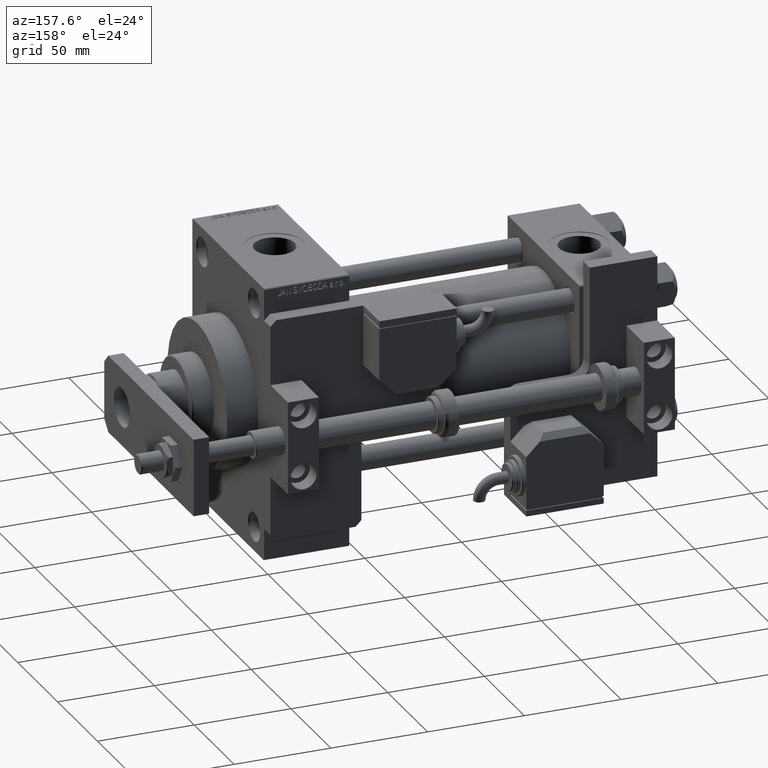
[diagram: clean part render]
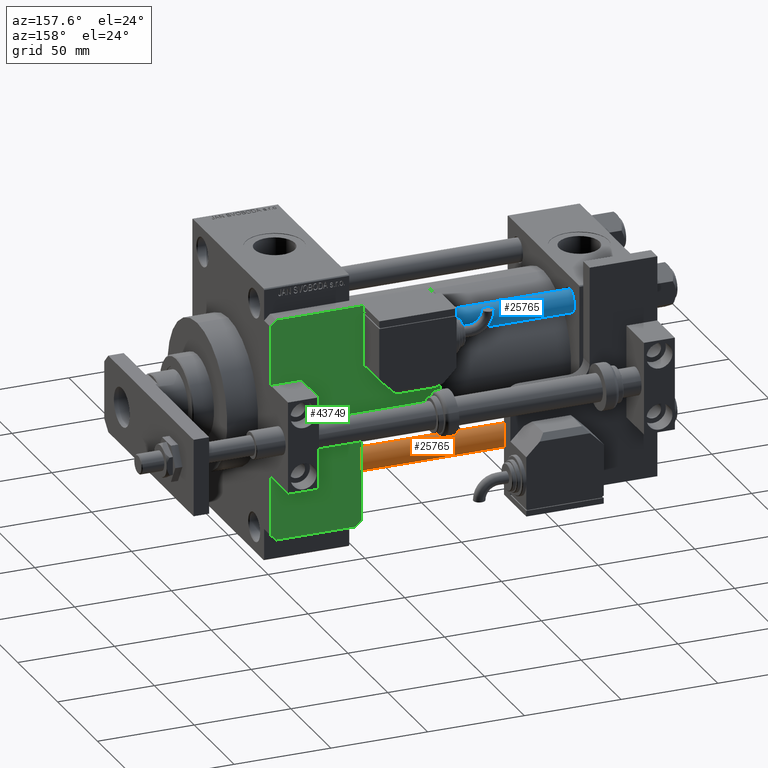
[diagram: same view with three faces highlighted in distinct colors, each labeled with its STEP entity id]
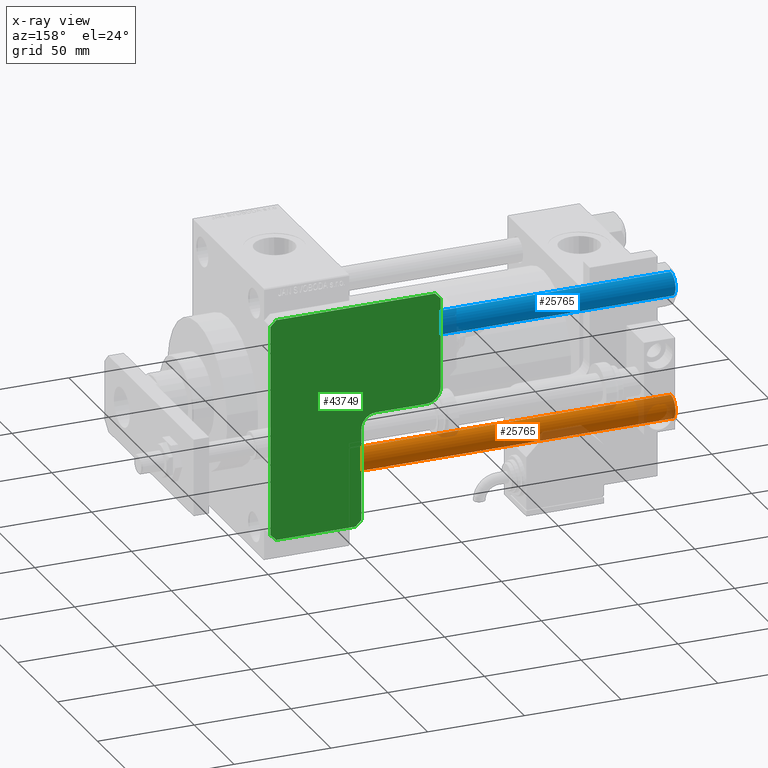
[diagram: x-ray of the same camera — body ghosted, the three highlighted faces saturated]
A machine part, auxiliary view with three faces highlighted in distinct colors.
The next image is the same camera in x-ray (body ghosted, the three faces saturated) — at least one of them is partly hidden behind the body in this view.
Their STEP definitions:

[orange] entity #25765 — the highlighted cylindrical surface (edge-blend (fillet) strip) has radius 6 mm, axis along (-1, -0, 0).
#5994 = DIRECTION ( 'NONE',  ( 1.000000000000000000, 0.000000000000000000, 0.000000000000000000 ) ) ;
#6643 = CARTESIAN_POINT ( 'NONE',  ( -6.000000000000000888, 0.000000000000000000, 184.5000000000000000 ) ) ;
#8200 = CARTESIAN_POINT ( 'NONE',  ( -6.000000000000000888, 0.000000000000000000, 0.5000000000000281997 ) ) ;
#8844 = LINE ( 'NONE', #43305, #46909 ) ;
#10154 = DIRECTION ( 'NONE',  ( -1.000000000000000000, 0.000000000000000000, 0.000000000000000000 ) ) ;
#12277 = DIRECTION ( 'NONE',  ( -0.000000000000000000, -0.000000000000000000, -1.000000000000000000 ) ) ;
#12534 = EDGE_CURVE ( 'NONE', #27091, #54232, #36532, .T. ) ;
#13381 = LINE ( 'NONE', #16438, #30929 ) ;
#13831 = VERTEX_POINT ( 'NONE', #36216 ) ;
#16438 = CARTESIAN_POINT ( 'NONE',  ( -6.000000000000000888, 0.000000000000000000, 185.0000000000000000 ) ) ;
#17402 = DIRECTION ( 'NONE',  ( 0.000000000000000000, 0.000000000000000000, -1.000000000000000000 ) ) ;
#17684 = CARTESIAN_POINT ( 'NONE',  ( 0.000000000000000000, 0.000000000000000000, 184.5000000000000000 ) ) ;
#19396 = DIRECTION ( 'NONE',  ( 1.000000000000000000, 0.000000000000000000, 0.000000000000000000 ) ) ;
#23462 = ORIENTED_EDGE ( 'NONE', *, *, #29775, .T. ) ;
#24550 = CIRCLE ( 'NONE', #44874, 6.000000000000000888 ) ;
#25765 = ADVANCED_FACE ( 'NONE', ( #31270 ), #39623, .T. ) ;
#26147 = VERTEX_POINT ( 'NONE', #6643 ) ;
#26313 = AXIS2_PLACEMENT_3D ( 'NONE', #34888, #52409, #10154 ) ;
#27091 = VERTEX_POINT ( 'NONE', #40920 ) ;
#29171 = ORIENTED_EDGE ( 'NONE', *, *, #12534, .T. ) ;
#29448 = EDGE_CURVE ( 'NONE', #26147, #54232, #13381, .T. ) ;
#29775 = EDGE_CURVE ( 'NONE', #13831, #27091, #8844, .T. ) ;
#30929 = VECTOR ( 'NONE', #12277, 1000.000000000000000 ) ;
#31270 = FACE_OUTER_BOUND ( 'NONE', #43347, .T. ) ;
#32446 = DIRECTION ( 'NONE',  ( -0.000000000000000000, -0.000000000000000000, 1.000000000000000000 ) ) ;
#34888 = CARTESIAN_POINT ( 'NONE',  ( 0.000000000000000000, 0.000000000000000000, 185.0000000000000000 ) ) ;
#36216 = CARTESIAN_POINT ( 'NONE',  ( 6.000000000000000888, 7.347880794884120722E-16, 184.5000000000000000 ) ) ;
#36532 = CIRCLE ( 'NONE', #43645, 6.000000000000000888 ) ;
#39623 = CYLINDRICAL_SURFACE ( 'NONE', #26313, 6.000000000000000888 ) ;
#40910 = EDGE_CURVE ( 'NONE', #26147, #13831, #24550, .T. ) ;
#40920 = CARTESIAN_POINT ( 'NONE',  ( 6.000000000000000888, 7.347880794884120722E-16, 0.5000000000000281997 ) ) ;
#43305 = CARTESIAN_POINT ( 'NONE',  ( 6.000000000000000888, 7.347880794884120722E-16, 185.0000000000000000 ) ) ;
#43347 = EDGE_LOOP ( 'NONE', ( #50275, #23462, #29171, #53729 ) ) ;
#43645 = AXIS2_PLACEMENT_3D ( 'NONE', #49135, #32446, #19396 ) ;
#44874 = AXIS2_PLACEMENT_3D ( 'NONE', #17684, #17402, #5994 ) ;
#46909 = VECTOR ( 'NONE', #47758, 1000.000000000000000 ) ;
#47758 = DIRECTION ( 'NONE',  ( -0.000000000000000000, -0.000000000000000000, -1.000000000000000000 ) ) ;
#49135 = CARTESIAN_POINT ( 'NONE',  ( 0.000000000000000000, 0.000000000000000000, 0.5000000000000281997 ) ) ;
#50275 = ORIENTED_EDGE ( 'NONE', *, *, #40910, .T. ) ;
#52409 = DIRECTION ( 'NONE',  ( -0.000000000000000000, -0.000000000000000000, -1.000000000000000000 ) ) ;
#53729 = ORIENTED_EDGE ( 'NONE', *, *, #29448, .F. ) ;
#54232 = VERTEX_POINT ( 'NONE', #8200 ) ;

[blue] entity #25765 — the highlighted cylindrical surface (edge-blend (fillet) strip) has radius 6 mm, axis along (1, -0, -0).
#5994 = DIRECTION ( 'NONE',  ( 1.000000000000000000, 0.000000000000000000, 0.000000000000000000 ) ) ;
#6643 = CARTESIAN_POINT ( 'NONE',  ( -6.000000000000000888, 0.000000000000000000, 184.5000000000000000 ) ) ;
#8200 = CARTESIAN_POINT ( 'NONE',  ( -6.000000000000000888, 0.000000000000000000, 0.5000000000000281997 ) ) ;
#8844 = LINE ( 'NONE', #43305, #46909 ) ;
#10154 = DIRECTION ( 'NONE',  ( -1.000000000000000000, 0.000000000000000000, 0.000000000000000000 ) ) ;
#12277 = DIRECTION ( 'NONE',  ( -0.000000000000000000, -0.000000000000000000, -1.000000000000000000 ) ) ;
#12534 = EDGE_CURVE ( 'NONE', #27091, #54232, #36532, .T. ) ;
#13381 = LINE ( 'NONE', #16438, #30929 ) ;
#13831 = VERTEX_POINT ( 'NONE', #36216 ) ;
#16438 = CARTESIAN_POINT ( 'NONE',  ( -6.000000000000000888, 0.000000000000000000, 185.0000000000000000 ) ) ;
#17402 = DIRECTION ( 'NONE',  ( 0.000000000000000000, 0.000000000000000000, -1.000000000000000000 ) ) ;
#17684 = CARTESIAN_POINT ( 'NONE',  ( 0.000000000000000000, 0.000000000000000000, 184.5000000000000000 ) ) ;
#19396 = DIRECTION ( 'NONE',  ( 1.000000000000000000, 0.000000000000000000, 0.000000000000000000 ) ) ;
#23462 = ORIENTED_EDGE ( 'NONE', *, *, #29775, .T. ) ;
#24550 = CIRCLE ( 'NONE', #44874, 6.000000000000000888 ) ;
#25765 = ADVANCED_FACE ( 'NONE', ( #31270 ), #39623, .T. ) ;
#26147 = VERTEX_POINT ( 'NONE', #6643 ) ;
#26313 = AXIS2_PLACEMENT_3D ( 'NONE', #34888, #52409, #10154 ) ;
#27091 = VERTEX_POINT ( 'NONE', #40920 ) ;
#29171 = ORIENTED_EDGE ( 'NONE', *, *, #12534, .T. ) ;
#29448 = EDGE_CURVE ( 'NONE', #26147, #54232, #13381, .T. ) ;
#29775 = EDGE_CURVE ( 'NONE', #13831, #27091, #8844, .T. ) ;
#30929 = VECTOR ( 'NONE', #12277, 1000.000000000000000 ) ;
#31270 = FACE_OUTER_BOUND ( 'NONE', #43347, .T. ) ;
#32446 = DIRECTION ( 'NONE',  ( -0.000000000000000000, -0.000000000000000000, 1.000000000000000000 ) ) ;
#34888 = CARTESIAN_POINT ( 'NONE',  ( 0.000000000000000000, 0.000000000000000000, 185.0000000000000000 ) ) ;
#36216 = CARTESIAN_POINT ( 'NONE',  ( 6.000000000000000888, 7.347880794884120722E-16, 184.5000000000000000 ) ) ;
#36532 = CIRCLE ( 'NONE', #43645, 6.000000000000000888 ) ;
#39623 = CYLINDRICAL_SURFACE ( 'NONE', #26313, 6.000000000000000888 ) ;
#40910 = EDGE_CURVE ( 'NONE', #26147, #13831, #24550, .T. ) ;
#40920 = CARTESIAN_POINT ( 'NONE',  ( 6.000000000000000888, 7.347880794884120722E-16, 0.5000000000000281997 ) ) ;
#43305 = CARTESIAN_POINT ( 'NONE',  ( 6.000000000000000888, 7.347880794884120722E-16, 185.0000000000000000 ) ) ;
#43347 = EDGE_LOOP ( 'NONE', ( #50275, #23462, #29171, #53729 ) ) ;
#43645 = AXIS2_PLACEMENT_3D ( 'NONE', #49135, #32446, #19396 ) ;
#44874 = AXIS2_PLACEMENT_3D ( 'NONE', #17684, #17402, #5994 ) ;
#46909 = VECTOR ( 'NONE', #47758, 1000.000000000000000 ) ;
#47758 = DIRECTION ( 'NONE',  ( -0.000000000000000000, -0.000000000000000000, -1.000000000000000000 ) ) ;
#49135 = CARTESIAN_POINT ( 'NONE',  ( 0.000000000000000000, 0.000000000000000000, 0.5000000000000281997 ) ) ;
#50275 = ORIENTED_EDGE ( 'NONE', *, *, #40910, .T. ) ;
#52409 = DIRECTION ( 'NONE',  ( -0.000000000000000000, -0.000000000000000000, -1.000000000000000000 ) ) ;
#53729 = ORIENTED_EDGE ( 'NONE', *, *, #29448, .F. ) ;
#54232 = VERTEX_POINT ( 'NONE', #8200 ) ;

[green] entity #43749 — the highlighted planar face has unit normal (-0, 1, -0).
#118 = CARTESIAN_POINT ( 'NONE',  ( 56.99999999999999289, 54.49999999999998579, 8.000000000000000000 ) ) ;
#1430 = DIRECTION ( 'NONE',  ( -0.7071067811865507924, -0.7071067811865441310, -0.000000000000000000 ) ) ;
#1927 = VERTEX_POINT ( 'NONE', #118 ) ;
#3450 = LINE ( 'NONE', #29568, #30454 ) ;
#3478 = CARTESIAN_POINT ( 'NONE',  ( 64.50000000000000000, 46.99999999999998579, 8.000000000000000000 ) ) ;
#3638 = CARTESIAN_POINT ( 'NONE',  ( 114.9999999999999858, 2.999999999999975131, 8.000000000000000000 ) ) ;
#3822 = CARTESIAN_POINT ( 'NONE',  ( 2.999999999999975131, 0.000000000000000000, 8.000000000000000000 ) ) ;
#4019 = DIRECTION ( 'NONE',  ( 0.000000000000000000, 1.000000000000000000, 0.000000000000000000 ) ) ;
#4492 = DIRECTION ( 'NONE',  ( 0.7071067811865441310, -0.7071067811865507924, -0.000000000000000000 ) ) ;
#4855 = DIRECTION ( 'NONE',  ( 1.000000000000000000, 0.000000000000000000, 0.000000000000000000 ) ) ;
#5248 = VERTEX_POINT ( 'NONE', #3478 ) ;
#5518 = VERTEX_POINT ( 'NONE', #10703 ) ;
#7133 = CARTESIAN_POINT ( 'NONE',  ( 114.9999999999999858, 43.99999999999998579, 8.000000000000000000 ) ) ;
#7410 = LINE ( 'NONE', #41604, #21422 ) ;
#10038 = CIRCLE ( 'NONE', #53521, 7.500000000000007105 ) ;
#10347 = ORIENTED_EDGE ( 'NONE', *, *, #45613, .T. ) ;
#10703 = CARTESIAN_POINT ( 'NONE',  ( 3.000000000000002665, 88.00000000000000000, 8.000000000000000000 ) ) ;
#11173 = CARTESIAN_POINT ( 'NONE',  ( 64.50000000000000000, 54.49999999999998579, 8.000000000000000000 ) ) ;
#11635 = PLANE ( 'NONE',  #15709 ) ;
#11720 = EDGE_CURVE ( 'NONE', #40412, #27782, #7410, .T. ) ;
#13261 = EDGE_LOOP ( 'NONE', ( #17512, #25250, #14770, #10347, #40377, #15318, #40949, #23483, #22779, #29997, #28236, #30927 ) ) ;
#13866 = CARTESIAN_POINT ( 'NONE',  ( 112.0000000000000142, 46.99999999999998579, 8.000000000000000000 ) ) ;
#14083 = VECTOR ( 'NONE', #35783, 1000.000000000000000 ) ;
#14603 = EDGE_CURVE ( 'NONE', #5248, #1927, #10038, .T. ) ;
#14770 = ORIENTED_EDGE ( 'NONE', *, *, #48757, .T. ) ;
#15318 = ORIENTED_EDGE ( 'NONE', *, *, #49835, .T. ) ;
#15622 = EDGE_CURVE ( 'NONE', #28293, #46053, #26832, .T. ) ;
#15709 = AXIS2_PLACEMENT_3D ( 'NONE', #19420, #49157, #36363 ) ;
#17512 = ORIENTED_EDGE ( 'NONE', *, *, #47490, .T. ) ;
#18828 = VERTEX_POINT ( 'NONE', #13866 ) ;
#19420 = CARTESIAN_POINT ( 'NONE',  ( 0.000000000000000000, 0.000000000000000000, 8.000000000000000000 ) ) ;
#20353 = VECTOR ( 'NONE', #50683, 1000.000000000000000 ) ;
#20395 = CARTESIAN_POINT ( 'NONE',  ( 1.500000000000001332, 1.499999999999987566, 8.000000000000000000 ) ) ;
#20946 = CARTESIAN_POINT ( 'NONE',  ( 0.000000000000000000, 88.00000000000000000, 8.000000000000000000 ) ) ;
#21422 = VECTOR ( 'NONE', #4019, 1000.000000000000000 ) ;
#22779 = ORIENTED_EDGE ( 'NONE', *, *, #33300, .T. ) ;
#22810 = DIRECTION ( 'NONE',  ( 0.000000000000000000, 1.000000000000000000, 0.000000000000000000 ) ) ;
#22885 = CARTESIAN_POINT ( 'NONE',  ( 56.99999999999999289, 80.49999999999997158, 8.000000000000000000 ) ) ;
#23483 = ORIENTED_EDGE ( 'NONE', *, *, #37365, .T. ) ;
#23591 = FACE_OUTER_BOUND ( 'NONE', #13261, .T. ) ;
#25148 = DIRECTION ( 'NONE',  ( -0.7071067811865441310, 0.7071067811865507924, -0.000000000000000000 ) ) ;
#25250 = ORIENTED_EDGE ( 'NONE', *, *, #46674, .T. ) ;
#25481 = CARTESIAN_POINT ( 'NONE',  ( 0.000000000000000000, 85.00000000000001421, 8.000000000000000000 ) ) ;
#26553 = CARTESIAN_POINT ( 'NONE',  ( 0.000000000000000000, 0.000000000000000000, 8.000000000000000000 ) ) ;
#26832 = LINE ( 'NONE', #26553, #26926 ) ;
#26926 = VECTOR ( 'NONE', #4855, 1000.000000000000000 ) ;
#27708 = CARTESIAN_POINT ( 'NONE',  ( 56.99999999999999289, 88.00000000000000000, 8.000000000000000000 ) ) ;
#27717 = CARTESIAN_POINT ( 'NONE',  ( 55.99999999999947420, -55.99999999999999289, 8.000000000000000000 ) ) ;
#27782 = VERTEX_POINT ( 'NONE', #7133 ) ;
#27950 = VECTOR ( 'NONE', #25148, 1000.000000000000114 ) ;
#28115 = DIRECTION ( 'NONE',  ( 1.000000000000000000, 0.000000000000000000, 0.000000000000000000 ) ) ;
#28236 = ORIENTED_EDGE ( 'NONE', *, *, #39202, .T. ) ;
#28293 = VERTEX_POINT ( 'NONE', #3822 ) ;
#29568 = CARTESIAN_POINT ( 'NONE',  ( 114.9999999999999858, 46.99999999999998579, 8.000000000000000000 ) ) ;
#29829 = VERTEX_POINT ( 'NONE', #43021 ) ;
#29997 = ORIENTED_EDGE ( 'NONE', *, *, #14603, .T. ) ;
#30454 = VECTOR ( 'NONE', #42099, 1000.000000000000000 ) ;
#30772 = CIRCLE ( 'NONE', #41421, 7.500000000000000000 ) ;
#30927 = ORIENTED_EDGE ( 'NONE', *, *, #43792, .T. ) ;
#33284 = DIRECTION ( 'NONE',  ( 1.000000000000000000, 0.000000000000000000, 0.000000000000000000 ) ) ;
#33300 = EDGE_CURVE ( 'NONE', #18828, #5248, #3450, .T. ) ;
#34091 = DIRECTION ( 'NONE',  ( 0.000000000000000000, -0.000000000000000000, 1.000000000000000000 ) ) ;
#34423 = VECTOR ( 'NONE', #1430, 1000.000000000000114 ) ;
#35027 = LINE ( 'NONE', #35850, #48457 ) ;
#35090 = LINE ( 'NONE', #52054, #34423 ) ;
#35783 = DIRECTION ( 'NONE',  ( -1.000000000000000000, 0.000000000000000000, 0.000000000000000000 ) ) ;
#35850 = CARTESIAN_POINT ( 'NONE',  ( 56.99999999999999289, 46.99999999999998579, 8.000000000000000000 ) ) ;
#36325 = VECTOR ( 'NONE', #52753, 1000.000000000000114 ) ;
#36363 = DIRECTION ( 'NONE',  ( 1.000000000000000000, 0.000000000000000000, -0.000000000000000000 ) ) ;
#37365 = EDGE_CURVE ( 'NONE', #27782, #18828, #42105, .T. ) ;
#39202 = EDGE_CURVE ( 'NONE', #1927, #47716, #35027, .T. ) ;
#39681 = CARTESIAN_POINT ( 'NONE',  ( 111.9999999999999858, 0.000000000000000000, 8.000000000000000000 ) ) ;
#39890 = CARTESIAN_POINT ( 'NONE',  ( 0.000000000000000000, 3.000000000000002665, 8.000000000000000000 ) ) ;
#40241 = LINE ( 'NONE', #27708, #14083 ) ;
#40377 = ORIENTED_EDGE ( 'NONE', *, *, #15622, .T. ) ;
#40412 = VERTEX_POINT ( 'NONE', #3638 ) ;
#40949 = ORIENTED_EDGE ( 'NONE', *, *, #11720, .T. ) ;
#41421 = AXIS2_PLACEMENT_3D ( 'NONE', #46068, #34091, #33284 ) ;
#41513 = LINE ( 'NONE', #20395, #53055 ) ;
#41533 = LINE ( 'NONE', #20946, #20353 ) ;
#41604 = CARTESIAN_POINT ( 'NONE',  ( 114.9999999999999858, 0.000000000000000000, 8.000000000000000000 ) ) ;
#42099 = DIRECTION ( 'NONE',  ( -1.000000000000000000, 0.000000000000000000, 0.000000000000000000 ) ) ;
#42105 = LINE ( 'NONE', #47390, #27950 ) ;
#43021 = CARTESIAN_POINT ( 'NONE',  ( 49.49999999999999289, 88.00000000000000000, 8.000000000000000000 ) ) ;
#43585 = LINE ( 'NONE', #27717, #36325 ) ;
#43749 = ADVANCED_FACE ( 'NONE', ( #23591 ), #11635, .T. ) ;
#43781 = VERTEX_POINT ( 'NONE', #25481 ) ;
#43792 = EDGE_CURVE ( 'NONE', #47716, #29829, #30772, .T. ) ;
#45203 = VERTEX_POINT ( 'NONE', #39890 ) ;
#45613 = EDGE_CURVE ( 'NONE', #45203, #28293, #41513, .T. ) ;
#46053 = VERTEX_POINT ( 'NONE', #39681 ) ;
#46068 = CARTESIAN_POINT ( 'NONE',  ( 49.49999999999999289, 80.49999999999998579, 8.000000000000000000 ) ) ;
#46674 = EDGE_CURVE ( 'NONE', #5518, #43781, #35090, .T. ) ;
#47390 = CARTESIAN_POINT ( 'NONE',  ( 79.50000000000051159, 79.49999999999977263, 8.000000000000000000 ) ) ;
#47490 = EDGE_CURVE ( 'NONE', #29829, #5518, #40241, .T. ) ;
#47716 = VERTEX_POINT ( 'NONE', #22885 ) ;
#48457 = VECTOR ( 'NONE', #22810, 1000.000000000000000 ) ;
#48757 = EDGE_CURVE ( 'NONE', #43781, #45203, #41533, .T. ) ;
#49157 = DIRECTION ( 'NONE',  ( 0.000000000000000000, -0.000000000000000000, 1.000000000000000000 ) ) ;
#49835 = EDGE_CURVE ( 'NONE', #46053, #40412, #43585, .T. ) ;
#50683 = DIRECTION ( 'NONE',  ( 0.000000000000000000, -1.000000000000000000, 0.000000000000000000 ) ) ;
#52054 = CARTESIAN_POINT ( 'NONE',  ( -42.50000000000000711, 42.50000000000040501, 8.000000000000000000 ) ) ;
#52753 = DIRECTION ( 'NONE',  ( 0.7071067811865507924, 0.7071067811865441310, -0.000000000000000000 ) ) ;
#52884 = DIRECTION ( 'NONE',  ( -0.000000000000000000, 0.000000000000000000, -1.000000000000000000 ) ) ;
#53055 = VECTOR ( 'NONE', #4492, 1000.000000000000114 ) ;
#53521 = AXIS2_PLACEMENT_3D ( 'NONE', #11173, #52884, #28115 ) ;